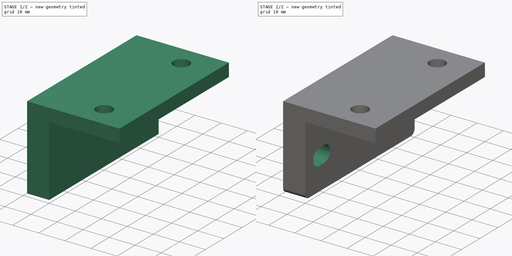
[diagram: build sequence overview — one tinted view per stage of 2, left to right]
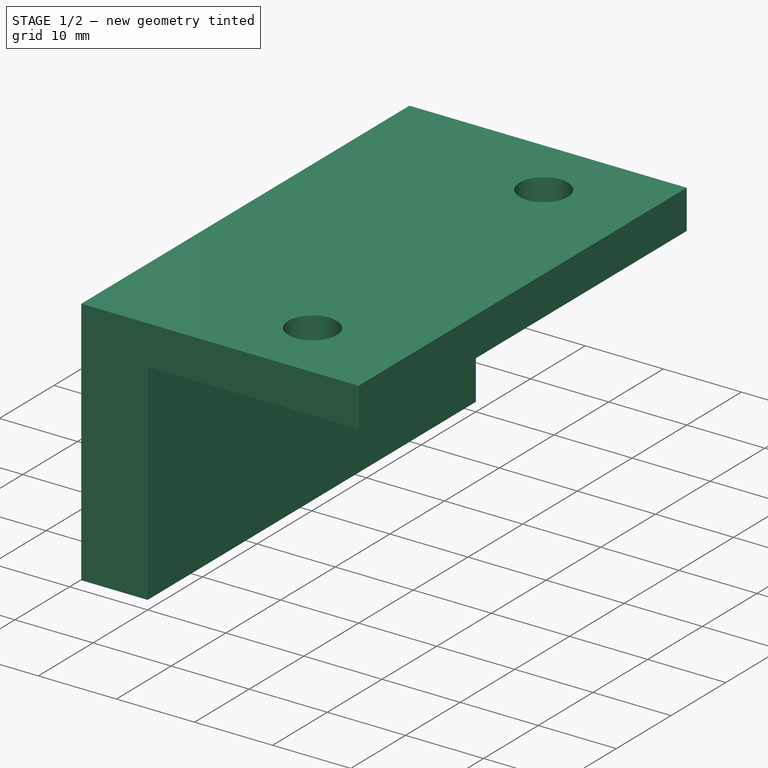
[diagram: stage 1 of 2 — iso view after this stage's code; geometry added in this stage tinted green]
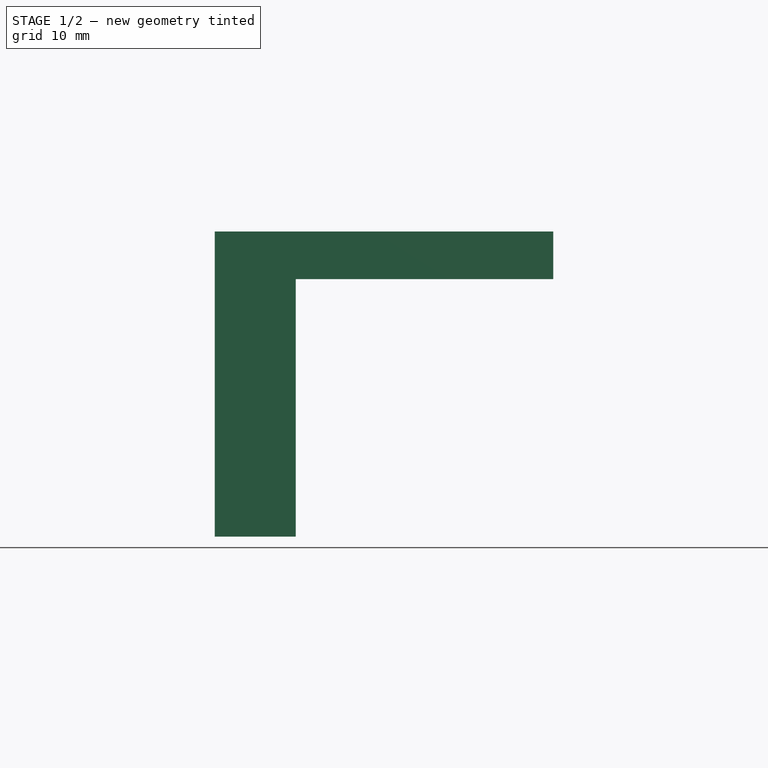
[diagram: stage 1 of 2 — front view after this stage's code; geometry added in this stage tinted green]
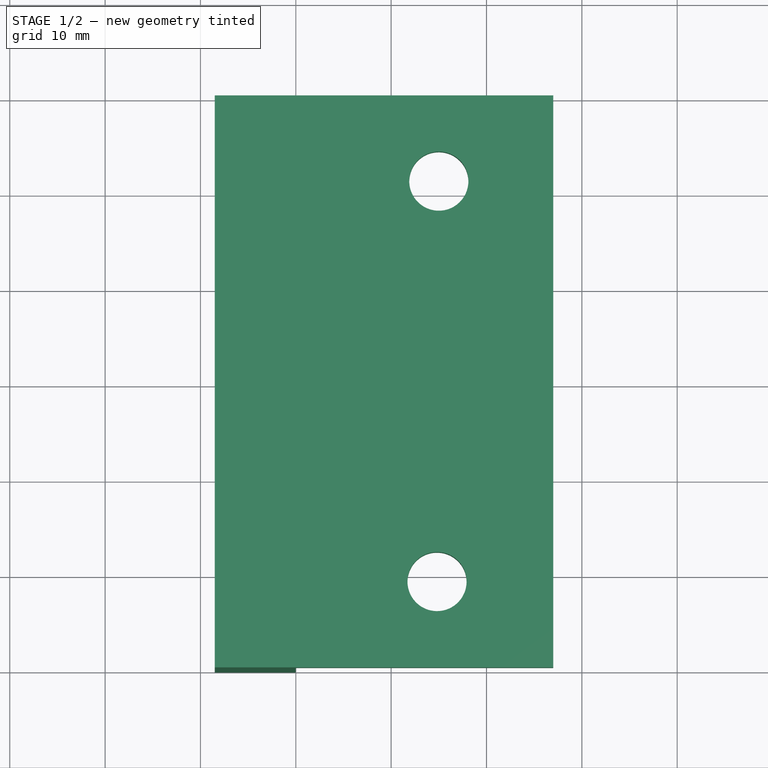
[diagram: stage 1 of 2 — top view after this stage's code; geometry added in this stage tinted green]
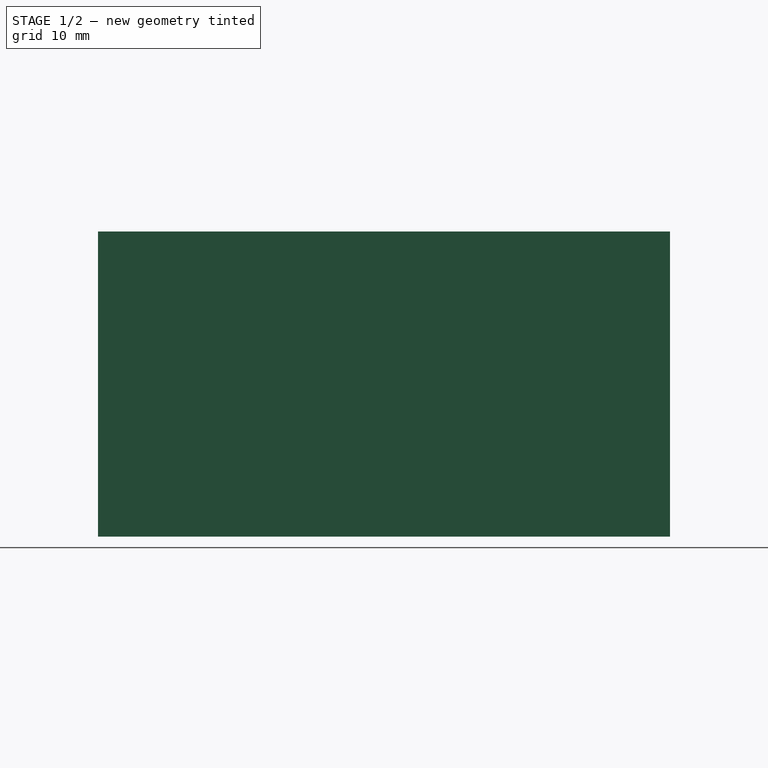
[diagram: stage 1 of 2 — right view after this stage's code; geometry added in this stage tinted green]
FCSTD DOCUMENT  (FreeCAD 0.19R18353 (Git))
Label: GearHolderBottom_001
License: CreativeCommons Attribution
LicenseURL: http://creativecommons.org/licenses/by/4.0/
objects: Sketcher::SketchObject×3, PartDesign::Pocket×2, PartDesign::Pad×1, PartDesign::Fillet×1, PartDesign::Body×1
note: 11 computed .brp shape members not serialized (recipe doc carries the construction recipe); baked Part::Feature solids carry a one-line shape summary decoded from their .brp

FEATURE [Sketcher::SketchObject] Sketch
  MapMode = 5
  Placement = pos=(0,0,0) rot=(1,0,0;1.5708rad)
  Support = -> [XZ_Plane]
  sketch-geometry (6):
    g0: LineSegment StartX=-8.5 StartY=5 StartZ=0 EndX=27 EndY=5 EndZ=0
    g1: LineSegment StartX=27 StartY=5 StartZ=0 EndX=27 EndY=0 EndZ=0
    g2: LineSegment StartX=27 StartY=0 StartZ=0 EndX=0 EndY=0 EndZ=0
    g3: LineSegment StartX=0 StartY=0 StartZ=0 EndX=0 EndY=-27 EndZ=0
    g4: LineSegment StartX=0 StartY=-27 StartZ=0 EndX=-8.5 EndY=-27 EndZ=0
    g5: LineSegment StartX=-8.5 StartY=-27 StartZ=0 EndX=-8.5 EndY=5 EndZ=0
  constraints (17):
    c: Horizontal(g0)
    c: Coincident(g0,g1)
    c: Coincident(g1,g2)
    c: Horizontal(g2)
    c: Coincident(g2,g3)
    c: Coincident(g3,g4)
    c: Horizontal(g4)
    c: Coincident(g4,g5)
    c: Vertical(g5)
    c: Vertical(g1)
    c: Vertical(g3)
    c: Equal(g3,g2)
    c: Coincident(g2,g-1)
    c: DistanceX(g2,g1) = 27
    c: DistanceX(g5,g2) = 8.5
    c: DistanceY(g1,g0) = 5
    c: Coincident(g0,g5)
FEATURE [PartDesign::Pad] Pad
  Length = 60
  Length2 = 53
  Placement = pos=(0,0,0) rot=(1,0,0;1.5708rad)
  Profile = -> Sketch
  Refine = true
  Type = 0
  expr: Length = 55 + 5
  expr: Length2 = 5 + 43 + 5
FEATURE [Sketcher::SketchObject] Sketch001
  ExternalGeometry = -> [Pad]
  MapMode = 5
  Support = -> [XY_Plane]
  sketch-geometry (3):
    g0: Circle CenterX=14.8115 CenterY=-51 CenterZ=0 NormalX=0 NormalY=0 NormalZ=1 AngleXU=0 Radius=3.1
    g1: Circle CenterX=15 CenterY=-9 CenterZ=0 NormalX=0 NormalY=0 NormalZ=1 AngleXU=0 Radius=3.1
    g2: GeomPoint X=14.9057 Y=-30 Z=0
  constraints (6):
    c: Diameter(g0) = 6.2
    c: Equal(g1,g0)
    c: DistanceX(g-1,g1) = 15
    c: DistanceY(g0,g1) = 42
    c: Symmetric(g0,g1,g2)
    c: DistanceY(g2,g-1) = 30
FEATURE [PartDesign::Pocket] Pocket
  BaseFeature = -> Pad
  Length = 5
  Length2 = 100
  Midplane = true
  Placement = pos=(0,0,0) rot=(1,0,0;1.5708rad)
  Profile = -> Sketch001
  Refine = true
  Type = 1
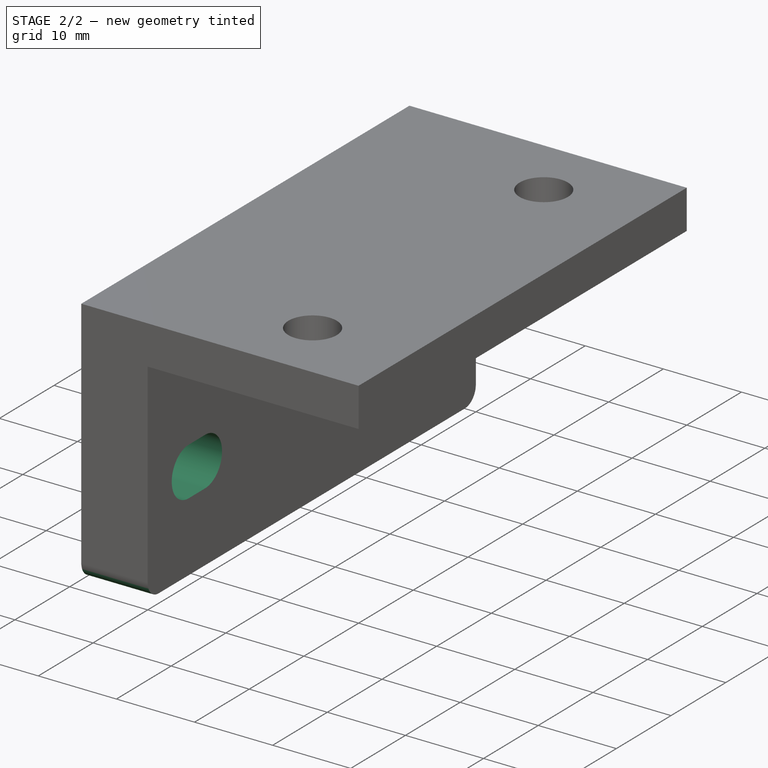
[diagram: stage 2 of 2 — iso view after this stage's code; geometry added in this stage tinted green]
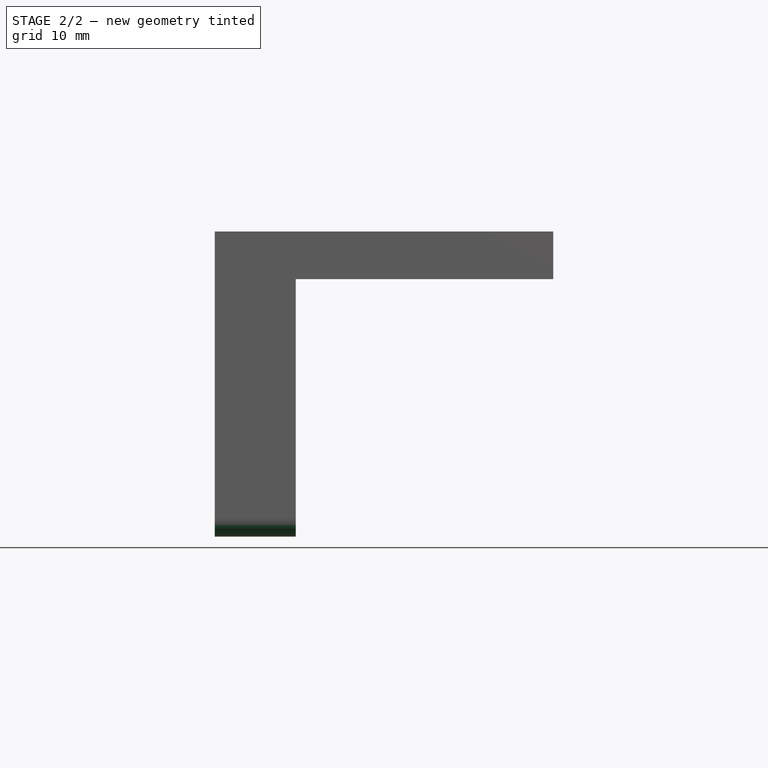
[diagram: stage 2 of 2 — front view after this stage's code; geometry added in this stage tinted green]
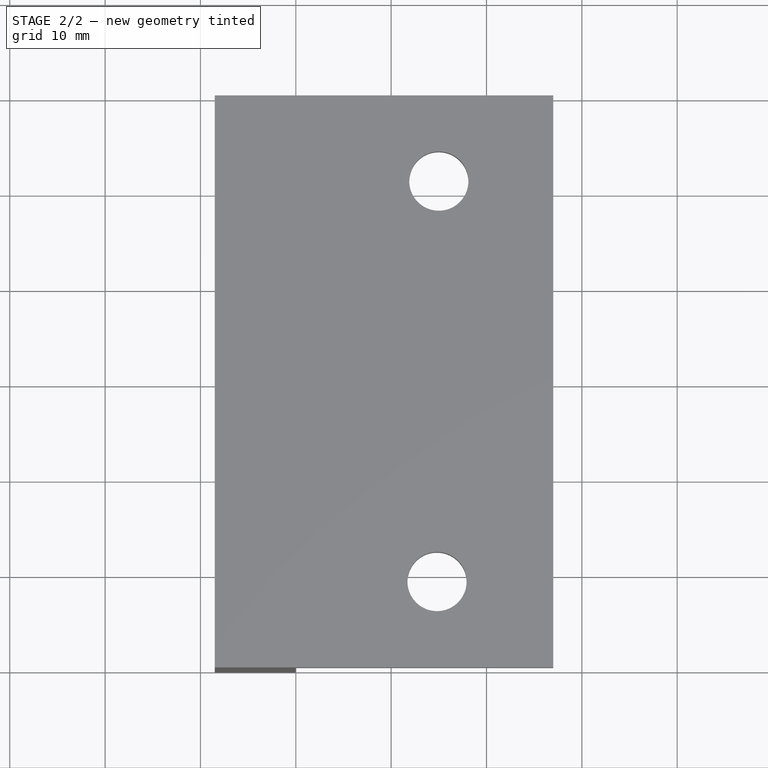
[diagram: stage 2 of 2 — top view after this stage's code; geometry added in this stage tinted green]
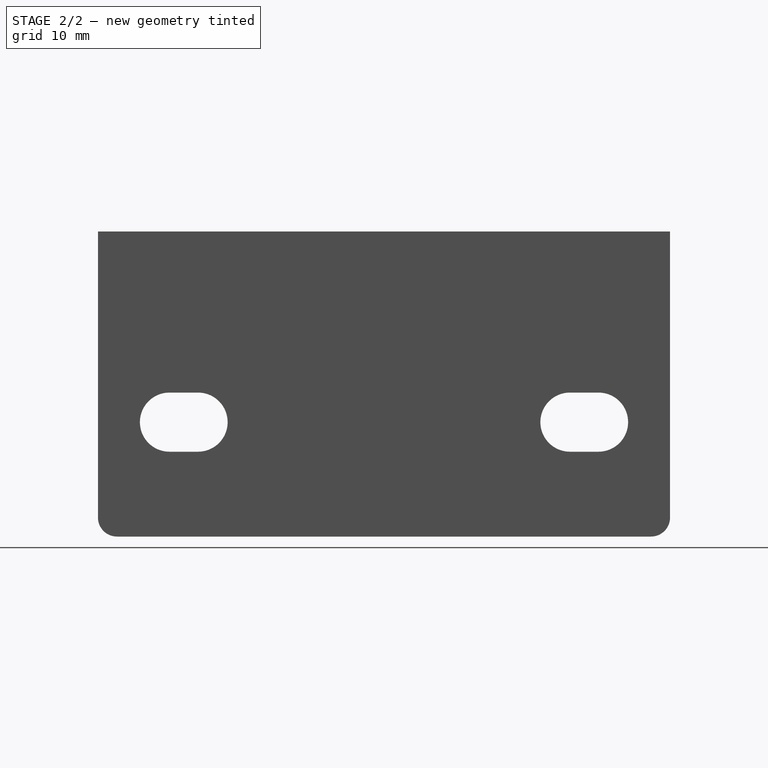
[diagram: stage 2 of 2 — right view after this stage's code; geometry added in this stage tinted green]
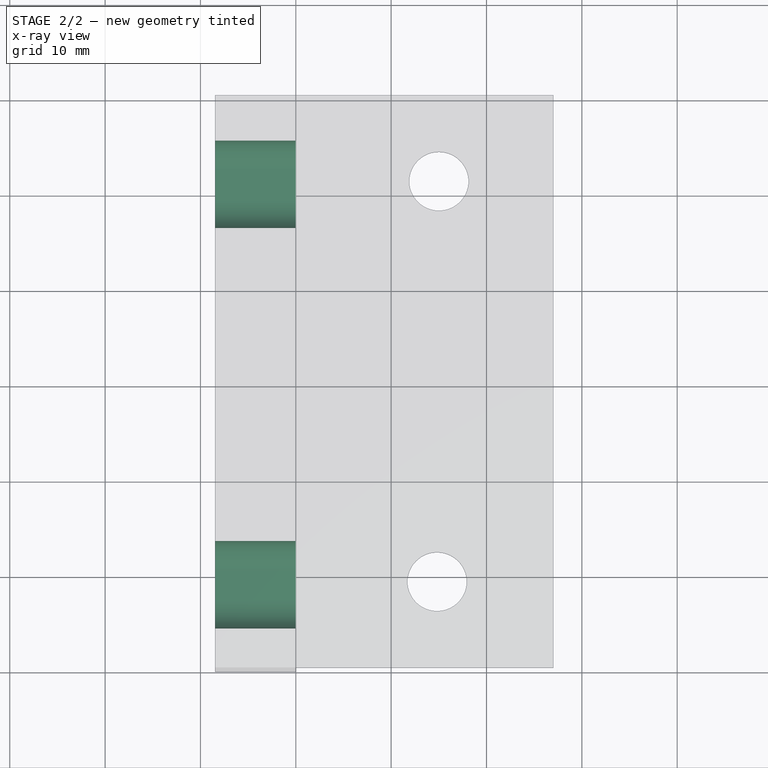
[diagram: stage 2 of 2 — x-ray composite at the top view; earlier geometry ghosted, this stage's added geometry solid]
FEATURE [Sketcher::SketchObject] Sketch002
  MapMode = 5
  Placement = pos=(0,0,0) rot=(0.57735,0.57735,0.57735;2.0944rad)
  Support = -> [YZ_Plane]
  sketch-geometry (11):
    g0: GeomPoint X=-30 Y=-15 Z=0
    g1: ArcOfCircle CenterX=-52.5 CenterY=-15 CenterZ=0 NormalX=0 NormalY=0 NormalZ=1 AngleXU=0 Radius=3.1 StartAngle=1.5708 EndAngle=4.71239
    g2: ArcOfCircle CenterX=-49.5 CenterY=-15 CenterZ=0 NormalX=0 NormalY=0 NormalZ=1 AngleXU=0 Radius=3.1 StartAngle=4.71239 EndAngle=7.85398
    g3: LineSegment StartX=-52.5 StartY=-18.1 StartZ=0 EndX=-49.5 EndY=-18.1 EndZ=0
    g4: LineSegment StartX=-52.5 StartY=-11.9 StartZ=0 EndX=-49.5 EndY=-11.9 EndZ=0
    g5: ArcOfCircle CenterX=-10.5 CenterY=-15 CenterZ=0 NormalX=0 NormalY=0 NormalZ=1 AngleXU=0 Radius=3.1 StartAngle=1.5708 EndAngle=4.71239
    g6: ArcOfCircle CenterX=-7.5 CenterY=-15 CenterZ=0 NormalX=0 NormalY=0 NormalZ=1 AngleXU=0 Radius=3.1 StartAngle=4.71239 EndAngle=7.85398
    g7: LineSegment StartX=-10.5 StartY=-18.1 StartZ=0 EndX=-7.5 EndY=-18.1 EndZ=0
    g8: LineSegment StartX=-10.5 StartY=-11.9 StartZ=0 EndX=-7.5 EndY=-11.9 EndZ=0
    g9: GeomPoint X=-9 Y=-15 Z=0
    g10: GeomPoint X=-51 Y=-15 Z=0
  constraints (23):
    c: DistanceX(g0,g-1) = 30
    c: DistanceY(g0,g-1) = 15
    c: Tangent(g1,g4) = 1.5708
    c: Tangent(g1,g3) = -1.5708
    c: Tangent(g3,g2) = -1.5708
    c: Tangent(g4,g2) = 1.5708
    c: Horizontal(g3)
    c: Equal(g1,g2)
    c: Tangent(g5,g8) = 1.5708
    c: Tangent(g5,g7) = -1.5708
    c: Tangent(g7,g6) = -1.5708
    c: Tangent(g8,g6) = 1.5708
    c: Horizontal(g7)
    c: Equal(g5,g6)
    c: Equal(g2,g6)
    c: Diameter(g2) = 6.2
    c: DistanceX(g5,g6) = 3
    c: DistanceX(g1,g2) = 3
    c: Symmetric(g2,g1,g10)
    c: Symmetric(g5,g6,g9)
    c: Symmetric(g9,g10,g0)
    c: Horizontal(g10,g9)
    c: DistanceX(g10,g9) = 42
FEATURE [PartDesign::Pocket] Pocket001
  BaseFeature = -> Pocket
  Length = 5
  Length2 = 100
  Placement = pos=(0,0,0) rot=(1,0,0;1.5708rad)
  Profile = -> Sketch002
  Refine = true
  Type = 1
FEATURE [PartDesign::Fillet] Fillet
  Base = -> Pocket001 [Edge25,Edge21]
  BaseFeature = -> Pocket001
  Placement = pos=(0,0,0) rot=(1,0,0;1.5708rad)
  Radius = 2
FEATURE [PartDesign::Body] Body
  Group = -> [Sketch,Pad,Sketch001,Pocket,Sketch002,Pocket001,Fillet]
  Origin = -> Origin
  Tip = -> Fillet
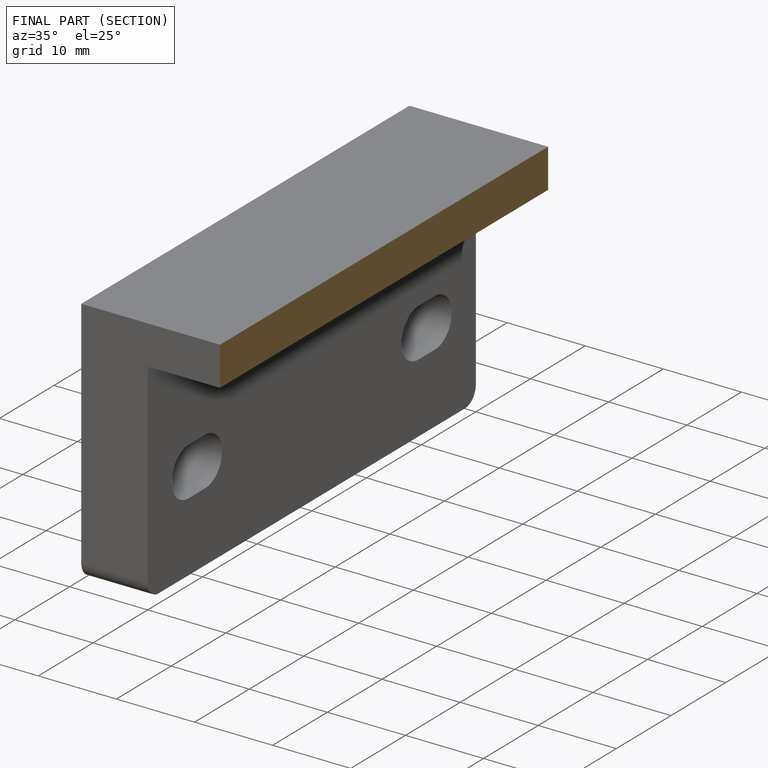
[diagram: finished part — half-section view (interior)]
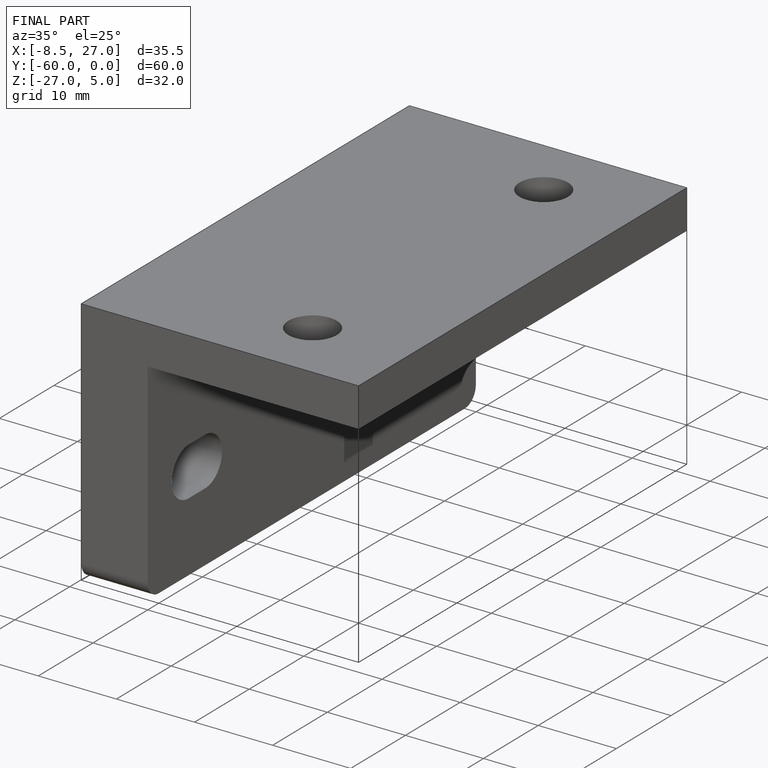
[diagram: finished part — iso view with bounding-box wireframe]
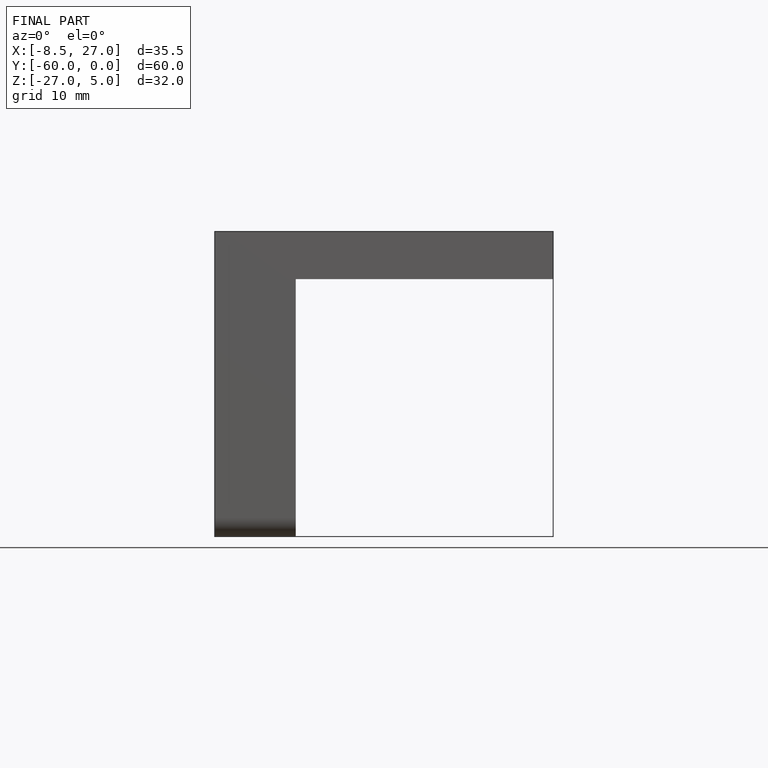
[diagram: finished part — front view with bounding-box wireframe]
